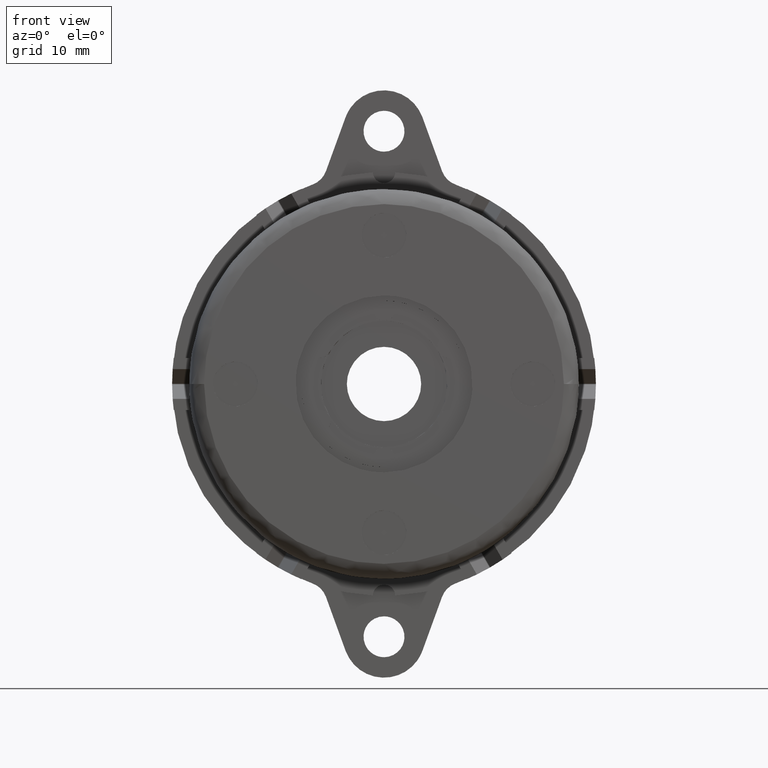
[diagram: clean part render]
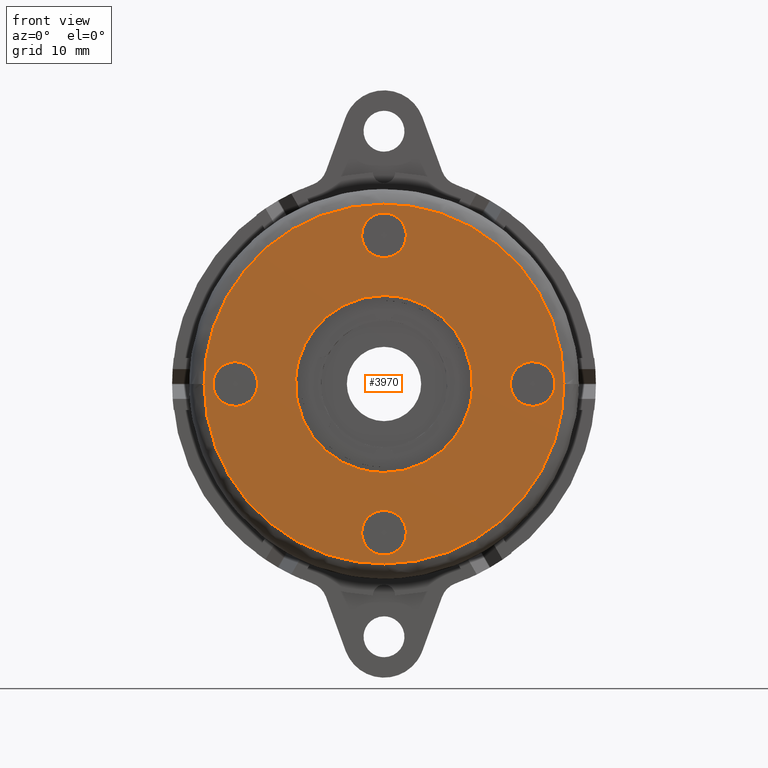
[diagram: same view with one face highlighted and labeled with its STEP entity id]
A machine part, front view. The second image highlights one B-rep face of the part: STEP entity #3970.
In plain terms, the highlighted face is a freeform B-spline surface patch.
Its self-contained STEP definition (entity closure, byte-faithful):
#2770=CARTESIAN_POINT('',(-2.999885769189481,-13.800000000000001,19.973820393157421));
#2771=VERTEX_POINT('',#2770);
#2777=CARTESIAN_POINT('',(0.0,-13.800000000000001,17.0));
#2778=VERTEX_POINT('',#2777);
#2779=CARTESIAN_POINT('',(0.0,-13.800000000000001,17.0));
#2780=CARTESIAN_POINT('',(-2.973933631440470,-13.800000000000001,17.000000000000007));
#2781=CARTESIAN_POINT('',(-2.999885769189482,-13.800000000000004,19.973820393157421));
#2789=(BOUNDED_CURVE()B_SPLINE_CURVE(2,(#2779,#2780,#2781),.UNSPECIFIED.,.F.,.U.)B_SPLINE_CURVE_WITH_KNOTS((3,3),(0.500000000000000,0.748460105644611),.UNSPECIFIED.)CURVE()GEOMETRIC_REPRESENTATION_ITEM()RATIONAL_B_SPLINE_CURVE((1.0,0.708910879644077,0.996414028053191))REPRESENTATION_ITEM(''));
#2790=EDGE_CURVE('',#2778,#2771,#2789,.T.);
#2792=CARTESIAN_POINT('',(2.999885769189481,-13.800000000000001,20.026179606842579));
#2793=VERTEX_POINT('',#2792);
#2794=CARTESIAN_POINT('',(2.999885769189482,-13.800000000000002,20.026179606842582));
#2795=CARTESIAN_POINT('',(3.0,-13.799999999999999,20.013090052635842));
#2796=CARTESIAN_POINT('',(3.0,-13.800000000000001,20.0));
#2797=CARTESIAN_POINT('',(3.0,-13.799999999999999,17.000000000000004));
#2798=CARTESIAN_POINT('',(0.0,-13.800000000000001,17.0));
#2806=(BOUNDED_CURVE()B_SPLINE_CURVE(2,(#2794,#2795,#2796,#2797,#2798),.UNSPECIFIED.,.F.,.U.)B_SPLINE_CURVE_WITH_KNOTS((3,2,3),(0.248460105644611,0.250000000000000,0.500000000000000),.UNSPECIFIED.)CURVE()GEOMETRIC_REPRESENTATION_ITEM()RATIONAL_B_SPLINE_CURVE((0.996414028053191,0.998195901542470,1.0,0.707106781186548,1.0))REPRESENTATION_ITEM(''));
#2807=EDGE_CURVE('',#2793,#2778,#2806,.T.);
#2839=CARTESIAN_POINT('',(0.0,-13.800000000000001,23.0));
#2840=VERTEX_POINT('',#2839);
#2841=CARTESIAN_POINT('',(0.0,-13.800000000000001,23.0));
#2842=CARTESIAN_POINT('',(2.973933631440469,-13.800000000000001,23.0));
#2843=CARTESIAN_POINT('',(2.999885769189482,-13.799999999999997,20.026179606842579));
#2851=(BOUNDED_CURVE()B_SPLINE_CURVE(2,(#2841,#2842,#2843),.UNSPECIFIED.,.F.,.U.)B_SPLINE_CURVE_WITH_KNOTS((3,3),(0.0,0.248460105644611),.UNSPECIFIED.)CURVE()GEOMETRIC_REPRESENTATION_ITEM()RATIONAL_B_SPLINE_CURVE((1.0,0.708910879644077,0.996414028053191))REPRESENTATION_ITEM(''));
#2852=EDGE_CURVE('',#2840,#2793,#2851,.T.);
#2854=CARTESIAN_POINT('',(-2.999885769189482,-13.800000000000002,19.973820393157428));
#2855=CARTESIAN_POINT('',(-3.0,-13.799999999999999,19.986909947364161));
#2856=CARTESIAN_POINT('',(-3.0,-13.800000000000001,20.0));
#2857=CARTESIAN_POINT('',(-3.0,-13.799999999999999,22.999999999999993));
#2858=CARTESIAN_POINT('',(0.0,-13.800000000000001,23.0));
#2866=(BOUNDED_CURVE()B_SPLINE_CURVE(2,(#2854,#2855,#2856,#2857,#2858),.UNSPECIFIED.,.F.,.U.)B_SPLINE_CURVE_WITH_KNOTS((3,2,3),(0.748460105644612,0.750000000000000,1.0),.UNSPECIFIED.)CURVE()GEOMETRIC_REPRESENTATION_ITEM()RATIONAL_B_SPLINE_CURVE((0.996414028053191,0.998195901542470,1.0,0.707106781186548,1.0))REPRESENTATION_ITEM(''));
#2867=EDGE_CURVE('',#2771,#2840,#2866,.T.);
#2892=CARTESIAN_POINT('',(17.000094230810522,-13.800000000000001,-0.026179606842577));
#2893=VERTEX_POINT('',#2892);
#2899=CARTESIAN_POINT('',(19.999980000000001,-13.800000000000001,-3.0));
#2900=VERTEX_POINT('',#2899);
#2901=CARTESIAN_POINT('',(19.999980000000001,-13.800000000000001,-3.0));
#2902=CARTESIAN_POINT('',(17.026046368559527,-13.800000000000001,-3.000000000000001));
#2903=CARTESIAN_POINT('',(17.000094230810522,-13.800000000000002,-0.026179606842577));
#2911=(BOUNDED_CURVE()B_SPLINE_CURVE(2,(#2901,#2902,#2903),.UNSPECIFIED.,.F.,.U.)B_SPLINE_CURVE_WITH_KNOTS((3,3),(0.500000000000000,0.748460105644612),.UNSPECIFIED.)CURVE()GEOMETRIC_REPRESENTATION_ITEM()RATIONAL_B_SPLINE_CURVE((1.0,0.708910879644077,0.996414028053191))REPRESENTATION_ITEM(''));
#2912=EDGE_CURVE('',#2900,#2893,#2911,.T.);
#2914=CARTESIAN_POINT('',(22.999865769189480,-13.800000000000001,0.026179606842577));
#2915=VERTEX_POINT('',#2914);
#2916=CARTESIAN_POINT('',(22.999865769189483,-13.799999999999999,0.026179606842576));
#2917=CARTESIAN_POINT('',(22.999980000000001,-13.799999999999997,0.013090052635842));
#2918=CARTESIAN_POINT('',(22.999980000000001,-13.800000000000001,0.0));
#2919=CARTESIAN_POINT('',(22.999980000000001,-13.799999999999999,-3.0));
#2920=CARTESIAN_POINT('',(19.999980000000001,-13.800000000000001,-3.0));
#2928=(BOUNDED_CURVE()B_SPLINE_CURVE(2,(#2916,#2917,#2918,#2919,#2920),.UNSPECIFIED.,.F.,.U.)B_SPLINE_CURVE_WITH_KNOTS((3,2,3),(0.248460105644612,0.250000000000000,0.500000000000000),.UNSPECIFIED.)CURVE()GEOMETRIC_REPRESENTATION_ITEM()RATIONAL_B_SPLINE_CURVE((0.996414028053191,0.998195901542471,1.0,0.707106781186548,1.0))REPRESENTATION_ITEM(''));
#2929=EDGE_CURVE('',#2915,#2900,#2928,.T.);
#2961=CARTESIAN_POINT('',(19.999980000000001,-13.800000000000001,3.0));
#2962=VERTEX_POINT('',#2961);
#2963=CARTESIAN_POINT('',(19.999980000000001,-13.800000000000001,3.0));
#2964=CARTESIAN_POINT('',(22.973913631440471,-13.799999999999999,3.0));
#2965=CARTESIAN_POINT('',(22.999865769189483,-13.799999999999999,0.026179606842576));
#2973=(BOUNDED_CURVE()B_SPLINE_CURVE(2,(#2963,#2964,#2965),.UNSPECIFIED.,.F.,.U.)B_SPLINE_CURVE_WITH_KNOTS((3,3),(0.0,0.248460105644612),.UNSPECIFIED.)CURVE()GEOMETRIC_REPRESENTATION_ITEM()RATIONAL_B_SPLINE_CURVE((1.0,0.708910879644077,0.996414028053191))REPRESENTATION_ITEM(''));
#2974=EDGE_CURVE('',#2962,#2915,#2973,.T.);
#2976=CARTESIAN_POINT('',(17.000094230810522,-13.800000000000002,-0.026179606842577));
#2977=CARTESIAN_POINT('',(16.999980000000001,-13.799999999999999,-0.013090052635842));
#2978=CARTESIAN_POINT('',(16.999980000000001,-13.800000000000001,0.0));
#2979=CARTESIAN_POINT('',(16.999980000000008,-13.799999999999999,3.0));
#2980=CARTESIAN_POINT('',(19.999980000000001,-13.800000000000001,3.0));
#2988=(BOUNDED_CURVE()B_SPLINE_CURVE(2,(#2976,#2977,#2978,#2979,#2980),.UNSPECIFIED.,.F.,.U.)B_SPLINE_CURVE_WITH_KNOTS((3,2,3),(0.748460105644612,0.750000000000000,1.0),.UNSPECIFIED.)CURVE()GEOMETRIC_REPRESENTATION_ITEM()RATIONAL_B_SPLINE_CURVE((0.996414028053191,0.998195901542470,1.0,0.707106781186548,1.0))REPRESENTATION_ITEM(''));
#2989=EDGE_CURVE('',#2893,#2962,#2988,.T.);
#3014=CARTESIAN_POINT('',(-2.999885769189481,-13.800000000000001,-20.026179606842579));
#3015=VERTEX_POINT('',#3014);
#3021=CARTESIAN_POINT('',(0.0,-13.800000000000001,-23.0));
#3022=VERTEX_POINT('',#3021);
#3023=CARTESIAN_POINT('',(0.0,-13.800000000000001,-23.0));
#3024=CARTESIAN_POINT('',(-2.973933631440474,-13.799999999999997,-22.999999999999996));
#3025=CARTESIAN_POINT('',(-2.999885769189482,-13.799999999999997,-20.026179606842575));
#3033=(BOUNDED_CURVE()B_SPLINE_CURVE(2,(#3023,#3024,#3025),.UNSPECIFIED.,.F.,.U.)B_SPLINE_CURVE_WITH_KNOTS((3,3),(0.500000000000000,0.748460105644612),.UNSPECIFIED.)CURVE()GEOMETRIC_REPRESENTATION_ITEM()RATIONAL_B_SPLINE_CURVE((1.0,0.708910879644077,0.996414028053192))REPRESENTATION_ITEM(''));
#3034=EDGE_CURVE('',#3022,#3015,#3033,.T.);
#3036=CARTESIAN_POINT('',(2.999885769189481,-13.800000000000001,-19.973820393157428));
#3037=VERTEX_POINT('',#3036);
#3038=CARTESIAN_POINT('',(2.999885769189482,-13.799999999999995,-19.973820393157418));
#3039=CARTESIAN_POINT('',(3.000000000000000,-13.799999999999995,-19.986909947364158));
#3040=CARTESIAN_POINT('',(3.0,-13.800000000000001,-20.0));
#3041=CARTESIAN_POINT('',(3.0,-13.799999999999999,-22.999999999999993));
#3042=CARTESIAN_POINT('',(0.0,-13.800000000000001,-23.0));
#3050=(BOUNDED_CURVE()B_SPLINE_CURVE(2,(#3038,#3039,#3040,#3041,#3042),.UNSPECIFIED.,.F.,.U.)B_SPLINE_CURVE_WITH_KNOTS((3,2,3),(0.248460105644612,0.250000000000000,0.500000000000000),.UNSPECIFIED.)CURVE()GEOMETRIC_REPRESENTATION_ITEM()RATIONAL_B_SPLINE_CURVE((0.996414028053192,0.998195901542471,1.0,0.707106781186548,1.0))REPRESENTATION_ITEM(''));
#3051=EDGE_CURVE('',#3037,#3022,#3050,.T.);
#3083=CARTESIAN_POINT('',(0.0,-13.800000000000001,-17.0));
#3084=VERTEX_POINT('',#3083);
#3085=CARTESIAN_POINT('',(0.0,-13.800000000000001,-17.0));
#3086=CARTESIAN_POINT('',(2.973933631440476,-13.799999999999999,-17.0));
#3087=CARTESIAN_POINT('',(2.999885769189481,-13.800000000000002,-19.973820393157428));
#3095=(BOUNDED_CURVE()B_SPLINE_CURVE(2,(#3085,#3086,#3087),.UNSPECIFIED.,.F.,.U.)B_SPLINE_CURVE_WITH_KNOTS((3,3),(0.0,0.248460105644612),.UNSPECIFIED.)CURVE()GEOMETRIC_REPRESENTATION_ITEM()RATIONAL_B_SPLINE_CURVE((1.0,0.708910879644077,0.996414028053192))REPRESENTATION_ITEM(''));
#3096=EDGE_CURVE('',#3084,#3037,#3095,.T.);
#3098=CARTESIAN_POINT('',(-2.999885769189481,-13.800000000000002,-20.026179606842579));
#3099=CARTESIAN_POINT('',(-3.000000000000000,-13.799999999999995,-20.013090052635850));
#3100=CARTESIAN_POINT('',(-3.0,-13.800000000000001,-20.0));
#3101=CARTESIAN_POINT('',(-3.0,-13.799999999999999,-17.000000000000004));
#3102=CARTESIAN_POINT('',(0.0,-13.800000000000001,-17.0));
#3110=(BOUNDED_CURVE()B_SPLINE_CURVE(2,(#3098,#3099,#3100,#3101,#3102),.UNSPECIFIED.,.F.,.U.)B_SPLINE_CURVE_WITH_KNOTS((3,2,3),(0.748460105644612,0.750000000000000,1.0),.UNSPECIFIED.)CURVE()GEOMETRIC_REPRESENTATION_ITEM()RATIONAL_B_SPLINE_CURVE((0.996414028053192,0.998195901542471,1.0,0.707106781186548,1.0))REPRESENTATION_ITEM(''));
#3111=EDGE_CURVE('',#3015,#3084,#3110,.T.);
#3136=CARTESIAN_POINT('',(-22.999885769189479,-13.800000000000001,-0.026179606842577));
#3137=VERTEX_POINT('',#3136);
#3143=CARTESIAN_POINT('',(-20.0,-13.800000000000001,-3.0));
#3144=VERTEX_POINT('',#3143);
#3145=CARTESIAN_POINT('',(-20.0,-13.800000000000001,-3.0));
#3146=CARTESIAN_POINT('',(-22.973933631440467,-13.800000000000001,-3.000000000000001));
#3147=CARTESIAN_POINT('',(-22.999885769189490,-13.800000000000002,-0.026179606842577));
#3155=(BOUNDED_CURVE()B_SPLINE_CURVE(2,(#3145,#3146,#3147),.UNSPECIFIED.,.F.,.U.)B_SPLINE_CURVE_WITH_KNOTS((3,3),(0.500000000000000,0.748460105644612),.UNSPECIFIED.)CURVE()GEOMETRIC_REPRESENTATION_ITEM()RATIONAL_B_SPLINE_CURVE((1.0,0.708910879644077,0.996414028053191))REPRESENTATION_ITEM(''));
#3156=EDGE_CURVE('',#3144,#3137,#3155,.T.);
#3158=CARTESIAN_POINT('',(-17.000114230810521,-13.800000000000001,0.026179606842577));
#3159=VERTEX_POINT('',#3158);
#3160=CARTESIAN_POINT('',(-17.000114230810524,-13.799999999999999,0.026179606842576));
#3161=CARTESIAN_POINT('',(-17.0,-13.799999999999997,0.013090052635842));
#3162=CARTESIAN_POINT('',(-17.0,-13.800000000000001,0.0));
#3163=CARTESIAN_POINT('',(-17.000000000000004,-13.799999999999999,-3.0));
#3164=CARTESIAN_POINT('',(-20.0,-13.800000000000001,-3.0));
#3172=(BOUNDED_CURVE()B_SPLINE_CURVE(2,(#3160,#3161,#3162,#3163,#3164),.UNSPECIFIED.,.F.,.U.)B_SPLINE_CURVE_WITH_KNOTS((3,2,3),(0.248460105644612,0.250000000000000,0.500000000000000),.UNSPECIFIED.)CURVE()GEOMETRIC_REPRESENTATION_ITEM()RATIONAL_B_SPLINE_CURVE((0.996414028053191,0.998195901542471,1.0,0.707106781186548,1.0))REPRESENTATION_ITEM(''));
#3173=EDGE_CURVE('',#3159,#3144,#3172,.T.);
#3205=CARTESIAN_POINT('',(-20.0,-13.800000000000001,3.0));
#3206=VERTEX_POINT('',#3205);
#3207=CARTESIAN_POINT('',(-20.0,-13.800000000000001,3.0));
#3208=CARTESIAN_POINT('',(-17.026066368559526,-13.799999999999999,3.0));
#3209=CARTESIAN_POINT('',(-17.000114230810524,-13.799999999999999,0.026179606842576));
#3217=(BOUNDED_CURVE()B_SPLINE_CURVE(2,(#3207,#3208,#3209),.UNSPECIFIED.,.F.,.U.)B_SPLINE_CURVE_WITH_KNOTS((3,3),(0.0,0.248460105644612),.UNSPECIFIED.)CURVE()GEOMETRIC_REPRESENTATION_ITEM()RATIONAL_B_SPLINE_CURVE((1.0,0.708910879644077,0.996414028053191))REPRESENTATION_ITEM(''));
#3218=EDGE_CURVE('',#3206,#3159,#3217,.T.);
#3220=CARTESIAN_POINT('',(-22.999885769189490,-13.800000000000002,-0.026179606842577));
#3221=CARTESIAN_POINT('',(-23.0,-13.799999999999999,-0.013090052635842));
#3222=CARTESIAN_POINT('',(-23.0,-13.800000000000001,0.0));
#3223=CARTESIAN_POINT('',(-22.999999999999993,-13.799999999999999,3.0));
#3224=CARTESIAN_POINT('',(-20.0,-13.800000000000001,3.0));
#3232=(BOUNDED_CURVE()B_SPLINE_CURVE(2,(#3220,#3221,#3222,#3223,#3224),.UNSPECIFIED.,.F.,.U.)B_SPLINE_CURVE_WITH_KNOTS((3,2,3),(0.748460105644612,0.750000000000000,1.0),.UNSPECIFIED.)CURVE()GEOMETRIC_REPRESENTATION_ITEM()RATIONAL_B_SPLINE_CURVE((0.996414028053191,0.998195901542470,1.0,0.707106781186548,1.0))REPRESENTATION_ITEM(''));
#3233=EDGE_CURVE('',#3137,#3206,#3232,.T.);
#3257=CARTESIAN_POINT('',(11.877804958173320,-13.799999999997761,-0.726463609134108));
#3258=VERTEX_POINT('',#3257);
#3259=CARTESIAN_POINT('',(0.0,-13.800000000000001,11.900000000000000));
#3260=VERTEX_POINT('',#3259);
#3261=CARTESIAN_POINT('',(11.877804958173327,-13.799999999997755,-0.726463609134108));
#3262=CARTESIAN_POINT('',(11.899999999991850,-13.799999999997794,-0.363570857944794));
#3263=CARTESIAN_POINT('',(11.899999999991980,-13.799999999997830,4.912183E-013));
#3264=CARTESIAN_POINT('',(11.899999999996112,-13.799999999998947,11.900000000000238));
#3265=CARTESIAN_POINT('',(0.0,-13.800000000000001,11.900000000000000));
#3273=(BOUNDED_CURVE()B_SPLINE_CURVE(2,(#3261,#3262,#3263,#3264,#3265),.UNSPECIFIED.,.F.,.U.)B_SPLINE_CURVE_WITH_KNOTS((3,2,3),(0.239333165782158,0.250000000000000,0.500000000000000),.UNSPECIFIED.)CURVE()GEOMETRIC_REPRESENTATION_ITEM()RATIONAL_B_SPLINE_CURVE((0.976072477898962,0.987503026365547,1.0,0.707106781186547,1.0))REPRESENTATION_ITEM(''));
#3274=EDGE_CURVE('',#3258,#3260,#3273,.T.);
#3276=CARTESIAN_POINT('',(-11.877804958173320,-13.799999999997761,0.726463609134107));
#3277=VERTEX_POINT('',#3276);
#3278=CARTESIAN_POINT('',(0.0,-13.800000000000001,11.900000000000000));
#3279=CARTESIAN_POINT('',(-11.194415426030458,-13.799999999998878,11.899999999999748));
#3280=CARTESIAN_POINT('',(-11.877804958173327,-13.799999999997755,0.726463609134107));
#3288=(BOUNDED_CURVE()B_SPLINE_CURVE(2,(#3278,#3279,#3280),.UNSPECIFIED.,.F.,.U.)B_SPLINE_CURVE_WITH_KNOTS((3,3),(0.500000000000000,0.739333165782158),.UNSPECIFIED.)CURVE()GEOMETRIC_REPRESENTATION_ITEM()RATIONAL_B_SPLINE_CURVE((1.0,0.719603754821000,0.976072477898962))REPRESENTATION_ITEM(''));
#3289=EDGE_CURVE('',#3260,#3277,#3288,.T.);
#3324=CARTESIAN_POINT('',(0.0,-13.800000000000001,-11.900000000000000));
#3325=VERTEX_POINT('',#3324);
#3326=CARTESIAN_POINT('',(0.0,-13.800000000000001,-11.900000000000000));
#3327=CARTESIAN_POINT('',(11.194415426030458,-13.799999999998883,-11.899999999999752));
#3328=CARTESIAN_POINT('',(11.877804958173327,-13.799999999997755,-0.726463609134108));
#3336=(BOUNDED_CURVE()B_SPLINE_CURVE(2,(#3326,#3327,#3328),.UNSPECIFIED.,.F.,.U.)B_SPLINE_CURVE_WITH_KNOTS((3,3),(0.0,0.239333165782158),.UNSPECIFIED.)CURVE()GEOMETRIC_REPRESENTATION_ITEM()RATIONAL_B_SPLINE_CURVE((1.0,0.719603754821000,0.976072477898962))REPRESENTATION_ITEM(''));
#3337=EDGE_CURVE('',#3325,#3258,#3336,.T.);
#3343=CARTESIAN_POINT('',(-11.877804958173327,-13.799999999997755,0.726463609134107));
#3344=CARTESIAN_POINT('',(-11.899999999991850,-13.799999999997786,0.363570857944794));
#3345=CARTESIAN_POINT('',(-11.899999999991980,-13.799999999997819,-4.893482E-013));
#3346=CARTESIAN_POINT('',(-11.899999999996112,-13.799999999998944,-11.900000000000237));
#3347=CARTESIAN_POINT('',(0.0,-13.800000000000001,-11.900000000000000));
#3355=(BOUNDED_CURVE()B_SPLINE_CURVE(2,(#3343,#3344,#3345,#3346,#3347),.UNSPECIFIED.,.F.,.U.)B_SPLINE_CURVE_WITH_KNOTS((3,2,3),(0.739333165782158,0.750000000000000,1.0),.UNSPECIFIED.)CURVE()GEOMETRIC_REPRESENTATION_ITEM()RATIONAL_B_SPLINE_CURVE((0.976072477898962,0.987503026365547,1.0,0.707106781186547,1.0))REPRESENTATION_ITEM(''));
#3356=EDGE_CURVE('',#3277,#3325,#3355,.T.);
#3873=CARTESIAN_POINT('',(-26.617579906866940,-13.800000000000001,-26.617579906191409));
#3874=CARTESIAN_POINT('',(-26.617579906866940,-13.800000000000001,26.617581204380571));
#3875=CARTESIAN_POINT('',(26.617581205056101,-13.800000000000001,-26.617579906191409));
#3876=CARTESIAN_POINT('',(26.617581205056108,-13.800000000000001,26.617581204380571));
#3877=B_SPLINE_SURFACE_WITH_KNOTS('',1,1,((#3873,#3875),(#3874,#3876)),.UNSPECIFIED.,.F.,.F.,.U.,(2,2),(2,2),(0.0,53.235161110571980),(0.0,53.235161111923048),.UNSPECIFIED.);
#3878=CARTESIAN_POINT('',(0.0,-13.800000000000001,24.199999999999999));
#3879=VERTEX_POINT('',#3878);
#3880=CARTESIAN_POINT('',(-24.200000000614182,-13.800000000000001,-1.770490E-015));
#3881=VERTEX_POINT('',#3880);
#3882=CARTESIAN_POINT('',(0.0,-13.800000000000001,24.199999999999999));
#3883=CARTESIAN_POINT('',(-24.200000000307082,-13.799999999999999,24.199999999999996));
#3884=CARTESIAN_POINT('',(-24.200000000614182,-13.800000000000001,-1.770490E-015));
#3892=(BOUNDED_CURVE()B_SPLINE_CURVE(2,(#3882,#3883,#3884),.UNSPECIFIED.,.F.,.U.)B_SPLINE_CURVE_WITH_KNOTS((3,3),(0.0,0.250000000000000),.UNSPECIFIED.)CURVE()GEOMETRIC_REPRESENTATION_ITEM()RATIONAL_B_SPLINE_CURVE((1.0,0.707106781186548,1.0))REPRESENTATION_ITEM(''));
#3893=EDGE_CURVE('',#3879,#3881,#3892,.T.);
#3894=ORIENTED_EDGE('',*,*,#3893,.T.);
#3895=CARTESIAN_POINT('',(0.0,-13.800000000000001,-24.199999999999999));
#3896=VERTEX_POINT('',#3895);
#3897=CARTESIAN_POINT('',(-24.200000000614182,-13.800000000000001,-1.770490E-015));
#3898=CARTESIAN_POINT('',(-24.200000000307082,-13.799999999999999,-24.199999999999996));
#3899=CARTESIAN_POINT('',(0.0,-13.800000000000001,-24.199999999999999));
#3907=(BOUNDED_CURVE()B_SPLINE_CURVE(2,(#3897,#3898,#3899),.UNSPECIFIED.,.F.,.U.)B_SPLINE_CURVE_WITH_KNOTS((3,3),(0.250000000000000,0.500000000000000),.UNSPECIFIED.)CURVE()GEOMETRIC_REPRESENTATION_ITEM()RATIONAL_B_SPLINE_CURVE((1.0,0.707106781186548,1.0))REPRESENTATION_ITEM(''));
#3908=EDGE_CURVE('',#3881,#3896,#3907,.T.);
#3909=ORIENTED_EDGE('',*,*,#3908,.T.);
#3910=CARTESIAN_POINT('',(24.200000000614182,-13.800000000000001,2.634884E-016));
#3911=VERTEX_POINT('',#3910);
#3912=CARTESIAN_POINT('',(0.0,-13.800000000000001,-24.199999999999999));
#3913=CARTESIAN_POINT('',(24.200000000307082,-13.799999999999999,-24.199999999999996));
#3914=CARTESIAN_POINT('',(24.200000000614182,-13.800000000000001,2.634884E-016));
#3922=(BOUNDED_CURVE()B_SPLINE_CURVE(2,(#3912,#3913,#3914),.UNSPECIFIED.,.F.,.U.)B_SPLINE_CURVE_WITH_KNOTS((3,3),(0.500000000000000,0.750000000000000),.UNSPECIFIED.)CURVE()GEOMETRIC_REPRESENTATION_ITEM()RATIONAL_B_SPLINE_CURVE((1.0,0.707106781186548,1.0))REPRESENTATION_ITEM(''));
#3923=EDGE_CURVE('',#3896,#3911,#3922,.T.);
#3924=ORIENTED_EDGE('',*,*,#3923,.T.);
#3925=CARTESIAN_POINT('',(24.200000000614182,-13.800000000000001,2.634884E-016));
#3926=CARTESIAN_POINT('',(24.200000000307082,-13.799999999999999,24.199999999999996));
#3927=CARTESIAN_POINT('',(0.0,-13.800000000000001,24.199999999999999));
#3935=(BOUNDED_CURVE()B_SPLINE_CURVE(2,(#3925,#3926,#3927),.UNSPECIFIED.,.F.,.U.)B_SPLINE_CURVE_WITH_KNOTS((3,3),(0.750000000000000,1.0),.UNSPECIFIED.)CURVE()GEOMETRIC_REPRESENTATION_ITEM()RATIONAL_B_SPLINE_CURVE((1.0,0.707106781186548,1.0))REPRESENTATION_ITEM(''));
#3936=EDGE_CURVE('',#3911,#3879,#3935,.T.);
#3937=ORIENTED_EDGE('',*,*,#3936,.T.);
#3938=EDGE_LOOP('',(#3894,#3909,#3924,#3937));
#3939=FACE_OUTER_BOUND('',#3938,.T.);
#3940=ORIENTED_EDGE('',*,*,#3289,.F.);
#3941=ORIENTED_EDGE('',*,*,#3274,.F.);
#3942=ORIENTED_EDGE('',*,*,#3337,.F.);
#3943=ORIENTED_EDGE('',*,*,#3356,.F.);
#3944=EDGE_LOOP('',(#3940,#3941,#3942,#3943));
#3945=FACE_BOUND('',#3944,.T.);
#3946=ORIENTED_EDGE('',*,*,#3218,.T.);
#3947=ORIENTED_EDGE('',*,*,#3173,.T.);
#3948=ORIENTED_EDGE('',*,*,#3156,.T.);
#3949=ORIENTED_EDGE('',*,*,#3233,.T.);
#3950=EDGE_LOOP('',(#3946,#3947,#3948,#3949));
#3951=FACE_BOUND('',#3950,.T.);
#3952=ORIENTED_EDGE('',*,*,#3096,.T.);
#3953=ORIENTED_EDGE('',*,*,#3051,.T.);
#3954=ORIENTED_EDGE('',*,*,#3034,.T.);
#3955=ORIENTED_EDGE('',*,*,#3111,.T.);
#3956=EDGE_LOOP('',(#3952,#3953,#3954,#3955));
#3957=FACE_BOUND('',#3956,.T.);
#3958=ORIENTED_EDGE('',*,*,#2974,.T.);
#3959=ORIENTED_EDGE('',*,*,#2929,.T.);
#3960=ORIENTED_EDGE('',*,*,#2912,.T.);
#3961=ORIENTED_EDGE('',*,*,#2989,.T.);
#3962=EDGE_LOOP('',(#3958,#3959,#3960,#3961));
#3963=FACE_BOUND('',#3962,.T.);
#3964=ORIENTED_EDGE('',*,*,#2852,.T.);
#3965=ORIENTED_EDGE('',*,*,#2807,.T.);
#3966=ORIENTED_EDGE('',*,*,#2790,.T.);
#3967=ORIENTED_EDGE('',*,*,#2867,.T.);
#3968=EDGE_LOOP('',(#3964,#3965,#3966,#3967));
#3969=FACE_BOUND('',#3968,.T.);
#3970=ADVANCED_FACE('',(#3939,#3945,#3951,#3957,#3963,#3969),#3877,.F.);